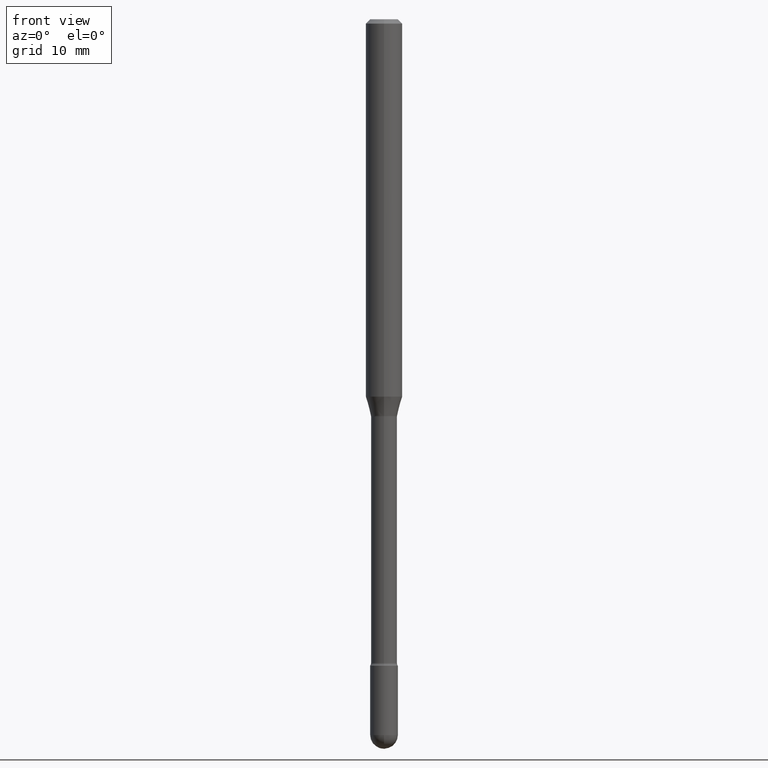
[diagram: clean part render]
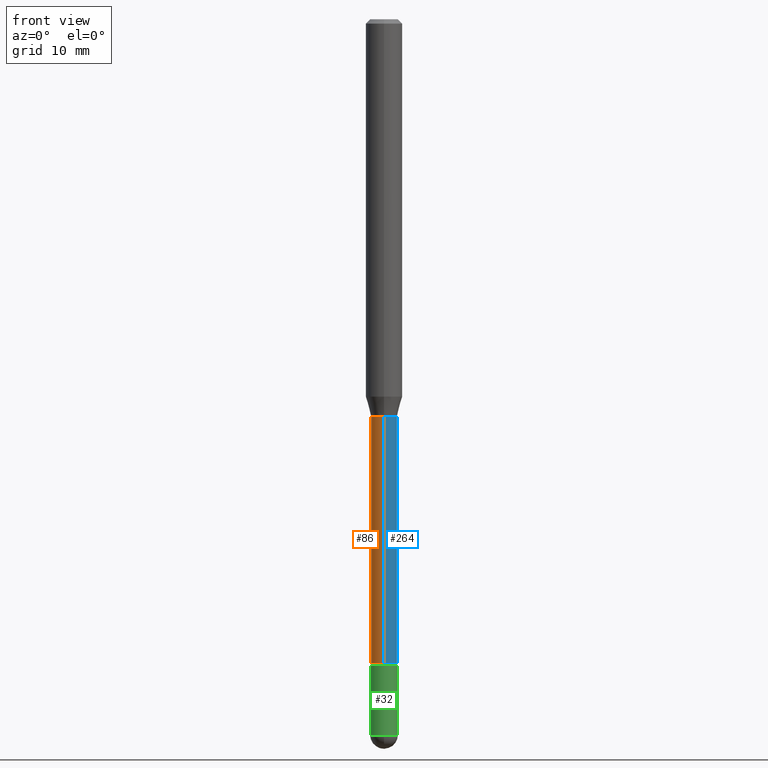
[diagram: same view with three faces highlighted in distinct colors, each labeled with its STEP entity id]
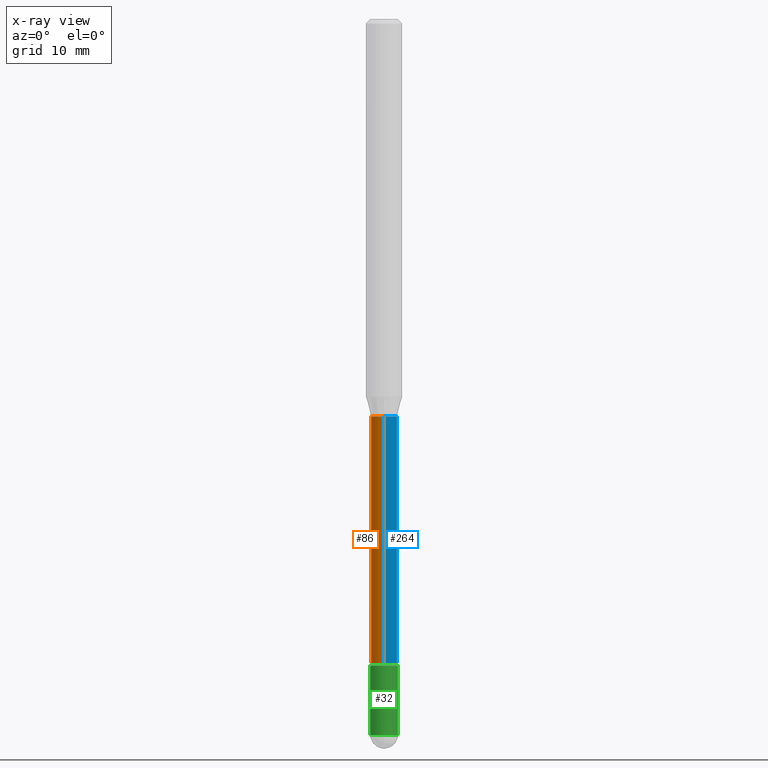
[diagram: x-ray of the same camera — body ghosted, the three highlighted faces saturated]
A machine part, front view with three faces highlighted in distinct colors.
The next image is the same camera in x-ray (body ghosted, the three faces saturated) — at least one of them is partly hidden behind the body in this view.
Their STEP definitions:

[orange] entity #86 — the highlighted cylindrical surface (edge-blend (fillet) strip) has radius 1.1341 mm, axis along (-0, 0, 1).
#2 = ORIENTED_EDGE ( 'NONE', *, *, #251, .F. ) ;
#10 = ORIENTED_EDGE ( 'NONE', *, *, #387, .T. ) ;
#20 = CARTESIAN_POINT ( 'NONE',  ( 3.172573315168849951E-16, 0.04465000000000004382, 3.221790159379056922E-16 ) ) ;
#31 = DIRECTION ( 'NONE',  ( -2.445472854051523017E-29, 3.491475542068089682E-15, 1.000000000000000000 ) ) ;
#36 = CIRCLE ( 'NONE', #113, 0.04465000000000007851 ) ;
#54 = FACE_OUTER_BOUND ( 'NONE', #440, .T. ) ;
#63 = CIRCLE ( 'NONE', #189, 0.04465000000000000219 ) ;
#86 = ADVANCED_FACE ( 'NONE', ( #54 ), #102, .T. ) ;
#87 = VERTEX_POINT ( 'NONE', #287 ) ;
#102 = CYLINDRICAL_SURFACE ( 'NONE', #390, 0.04465000000000004382 ) ;
#113 = AXIS2_PLACEMENT_3D ( 'NONE', #176, #444, #404 ) ;
#147 = CARTESIAN_POINT ( 'NONE',  ( 3.273825655015205278E-16, 0.04464999999999237634, -2.206203551853163081 ) ) ;
#155 = CARTESIAN_POINT ( 'NONE',  ( -1.169113584055446105E-44, 1.669184350826100908E-30, 4.780733988912460139E-16 ) ) ;
#161 = VERTEX_POINT ( 'NONE', #147 ) ;
#176 = CARTESIAN_POINT ( 'NONE',  ( 5.395210896568961877E-29, -7.702905742119066904E-15, -2.206203551853163081 ) ) ;
#189 = AXIS2_PLACEMENT_3D ( 'NONE', #389, #31, #548 ) ;
#215 = ORIENTED_EDGE ( 'NONE', *, *, #549, .T. ) ;
#251 = EDGE_CURVE ( 'NONE', #447, #466, #63, .T. ) ;
#266 = ORIENTED_EDGE ( 'NONE', *, *, #284, .F. ) ;
#272 = CARTESIAN_POINT ( 'NONE',  ( -3.117892835586584493E-16, -0.04465000000000475533, -1.361974787463811065 ) ) ;
#278 = VECTOR ( 'NONE', #430, 39.37007874015748143 ) ;
#284 = EDGE_CURVE ( 'NONE', #161, #447, #465, .T. ) ;
#287 = CARTESIAN_POINT ( 'NONE',  ( -3.117892835586383826E-16, -0.04465000000000778069, -2.206203551853162637 ) ) ;
#303 = VECTOR ( 'NONE', #540, 39.37007874015748143 ) ;
#387 = EDGE_CURVE ( 'NONE', #161, #87, #36, .T. ) ;
#389 = CARTESIAN_POINT ( 'NONE',  ( 3.330672370645342847E-29, -4.755301659343282249E-15, -1.361974787463811287 ) ) ;
#390 = AXIS2_PLACEMENT_3D ( 'NONE', #155, #493, #495 ) ;
#404 = DIRECTION ( 'NONE',  ( -6.982962677686265922E-15, -1.000000000000000000, 6.118360568117040476E-15 ) ) ;
#430 = DIRECTION ( 'NONE',  ( -2.445472854051522737E-29, 3.491475542068090077E-15, 1.000000000000000000 ) ) ;
#440 = EDGE_LOOP ( 'NONE', ( #266, #10, #215, #2 ) ) ;
#444 = DIRECTION ( 'NONE',  ( -2.445472854051523017E-29, 3.491475542068089682E-15, 1.000000000000000000 ) ) ;
#447 = VERTEX_POINT ( 'NONE', #484 ) ;
#458 = LINE ( 'NONE', #536, #303 ) ;
#465 = LINE ( 'NONE', #20, #278 ) ;
#466 = VERTEX_POINT ( 'NONE', #272 ) ;
#484 = CARTESIAN_POINT ( 'NONE',  ( 3.172573315169389334E-16, 0.04464999999999524904, -1.361974787463811509 ) ) ;
#493 = DIRECTION ( 'NONE',  ( -2.445472854051523017E-29, 3.491475542068089682E-15, 1.000000000000000000 ) ) ;
#495 = DIRECTION ( 'NONE',  ( -6.982962677686265922E-15, -1.000000000000000000, 3.491475542068089288E-15 ) ) ;
#536 = CARTESIAN_POINT ( 'NONE',  ( -3.117892835586920745E-16, -0.04465000000000004382, 6.339677818445863849E-16 ) ) ;
#540 = DIRECTION ( 'NONE',  ( -2.445472854051522737E-29, 3.491475542068090077E-15, 1.000000000000000000 ) ) ;
#548 = DIRECTION ( 'NONE',  ( -6.982962677686265922E-15, -1.000000000000000000, 6.118360568117050731E-15 ) ) ;
#549 = EDGE_CURVE ( 'NONE', #87, #466, #458, .T. ) ;

[blue] entity #264 — the highlighted cylindrical surface (edge-blend (fillet) strip) has radius 1.1341 mm, axis along (-0, 0, 1).
#20 = CARTESIAN_POINT ( 'NONE',  ( 3.172573315168849951E-16, 0.04465000000000004382, 3.221790159379056922E-16 ) ) ;
#55 = AXIS2_PLACEMENT_3D ( 'NONE', #107, #152, #457 ) ;
#73 = ORIENTED_EDGE ( 'NONE', *, *, #174, .T. ) ;
#87 = VERTEX_POINT ( 'NONE', #287 ) ;
#107 = CARTESIAN_POINT ( 'NONE',  ( 5.395210896568961877E-29, -7.702905742119066904E-15, -2.206203551853163081 ) ) ;
#112 = CARTESIAN_POINT ( 'NONE',  ( 3.330672370645342847E-29, -4.755301659343282249E-15, -1.361974787463811287 ) ) ;
#117 = EDGE_CURVE ( 'NONE', #466, #447, #254, .T. ) ;
#147 = CARTESIAN_POINT ( 'NONE',  ( 3.273825655015205278E-16, 0.04464999999999237634, -2.206203551853163081 ) ) ;
#152 = DIRECTION ( 'NONE',  ( -2.445472854051523017E-29, 3.491475542068089682E-15, 1.000000000000000000 ) ) ;
#161 = VERTEX_POINT ( 'NONE', #147 ) ;
#174 = EDGE_CURVE ( 'NONE', #87, #161, #382, .T. ) ;
#200 = DIRECTION ( 'NONE',  ( -2.445472854051523017E-29, 3.491475542068089682E-15, 1.000000000000000000 ) ) ;
#214 = AXIS2_PLACEMENT_3D ( 'NONE', #112, #200, #535 ) ;
#235 = AXIS2_PLACEMENT_3D ( 'NONE', #469, #300, #543 ) ;
#254 = CIRCLE ( 'NONE', #214, 0.04465000000000000219 ) ;
#264 = ADVANCED_FACE ( 'NONE', ( #474 ), #508, .T. ) ;
#272 = CARTESIAN_POINT ( 'NONE',  ( -3.117892835586584493E-16, -0.04465000000000475533, -1.361974787463811065 ) ) ;
#278 = VECTOR ( 'NONE', #430, 39.37007874015748143 ) ;
#284 = EDGE_CURVE ( 'NONE', #161, #447, #465, .T. ) ;
#287 = CARTESIAN_POINT ( 'NONE',  ( -3.117892835586383826E-16, -0.04465000000000778069, -2.206203551853162637 ) ) ;
#300 = DIRECTION ( 'NONE',  ( -2.445472854051523017E-29, 3.491475542068089682E-15, 1.000000000000000000 ) ) ;
#303 = VECTOR ( 'NONE', #540, 39.37007874015748143 ) ;
#309 = ORIENTED_EDGE ( 'NONE', *, *, #117, .F. ) ;
#382 = CIRCLE ( 'NONE', #55, 0.04465000000000007851 ) ;
#430 = DIRECTION ( 'NONE',  ( -2.445472854051522737E-29, 3.491475542068090077E-15, 1.000000000000000000 ) ) ;
#435 = ORIENTED_EDGE ( 'NONE', *, *, #549, .F. ) ;
#447 = VERTEX_POINT ( 'NONE', #484 ) ;
#457 = DIRECTION ( 'NONE',  ( -6.982962677686265922E-15, -1.000000000000000000, 6.118360568117040476E-15 ) ) ;
#458 = LINE ( 'NONE', #536, #303 ) ;
#465 = LINE ( 'NONE', #20, #278 ) ;
#466 = VERTEX_POINT ( 'NONE', #272 ) ;
#469 = CARTESIAN_POINT ( 'NONE',  ( -1.169113584055446105E-44, 1.669184350826100908E-30, 4.780733988912460139E-16 ) ) ;
#474 = FACE_OUTER_BOUND ( 'NONE', #532, .T. ) ;
#484 = CARTESIAN_POINT ( 'NONE',  ( 3.172573315169389334E-16, 0.04464999999999524904, -1.361974787463811509 ) ) ;
#485 = ORIENTED_EDGE ( 'NONE', *, *, #284, .T. ) ;
#508 = CYLINDRICAL_SURFACE ( 'NONE', #235, 0.04465000000000004382 ) ;
#532 = EDGE_LOOP ( 'NONE', ( #73, #485, #309, #435 ) ) ;
#535 = DIRECTION ( 'NONE',  ( -6.982962677686265922E-15, -1.000000000000000000, 6.118360568117050731E-15 ) ) ;
#536 = CARTESIAN_POINT ( 'NONE',  ( -3.117892835586920745E-16, -0.04465000000000004382, 6.339677818445863849E-16 ) ) ;
#540 = DIRECTION ( 'NONE',  ( -2.445472854051522737E-29, 3.491475542068090077E-15, 1.000000000000000000 ) ) ;
#543 = DIRECTION ( 'NONE',  ( -6.982962677686265922E-15, -1.000000000000000000, 3.491475542068089288E-15 ) ) ;
#549 = EDGE_CURVE ( 'NONE', #87, #466, #458, .T. ) ;

[green] entity #32 — the highlighted cylindrical surface (edge-blend (fillet) strip) has radius 1.2065 mm, axis along (-0, 0, 1).
#11 = CARTESIAN_POINT ( 'NONE',  ( -0.04749999999999999362, -7.810736775039144241E-15, -2.215000000000000302 ) ) ;
#23 = AXIS2_PLACEMENT_3D ( 'NONE', #528, #139, #320 ) ;
#26 = AXIS2_PLACEMENT_3D ( 'NONE', #337, #335, #500 ) ;
#32 = ADVANCED_FACE ( 'NONE', ( #186 ), #366, .T. ) ;
#42 = DIRECTION ( 'NONE',  ( -2.445468806185136597E-29, 3.491481338843145583E-15, 1.000000000000000000 ) ) ;
#43 = ORIENTED_EDGE ( 'NONE', *, *, #399, .T. ) ;
#70 = VECTOR ( 'NONE', #138, 39.37007874015748143 ) ;
#77 = LINE ( 'NONE', #212, #246 ) ;
#81 = VERTEX_POINT ( 'NONE', #499 ) ;
#89 = LINE ( 'NONE', #352, #70 ) ;
#103 = ORIENTED_EDGE ( 'NONE', *, *, #531, .T. ) ;
#114 = VERTEX_POINT ( 'NONE', #11 ) ;
#123 = CARTESIAN_POINT ( 'NONE',  ( 0.04749999999999999362, -8.065321892727665188E-15, -2.215000000000000302 ) ) ;
#138 = DIRECTION ( 'NONE',  ( -2.445468806185136877E-29, 3.491481338843145188E-15, 1.000000000000000000 ) ) ;
#139 = DIRECTION ( 'NONE',  ( -2.445468806185136597E-29, 3.491481338843145583E-15, 1.000000000000000000 ) ) ;
#162 = CIRCLE ( 'NONE', #26, 0.04750000000000000749 ) ;
#180 = AXIS2_PLACEMENT_3D ( 'NONE', #240, #415, #377 ) ;
#185 = CARTESIAN_POINT ( 'NONE',  ( -0.04750000000000000749, -7.810736775039144241E-15, -2.452500000000000124 ) ) ;
#186 = FACE_OUTER_BOUND ( 'NONE', #486, .T. ) ;
#202 = DIRECTION ( 'NONE',  ( -2.445468806185136877E-29, 3.491481338843145188E-15, 1.000000000000000000 ) ) ;
#209 = VERTEX_POINT ( 'NONE', #416 ) ;
#212 = CARTESIAN_POINT ( 'NONE',  ( -0.04750000000000000749, 3.375077994860476415E-16, -2.336494167871080260E-30 ) ) ;
#222 = ORIENTED_EDGE ( 'NONE', *, *, #412, .T. ) ;
#231 = ORIENTED_EDGE ( 'NONE', *, *, #330, .F. ) ;
#237 = CIRCLE ( 'NONE', #180, 0.04749999999999999362 ) ;
#240 = CARTESIAN_POINT ( 'NONE',  ( 5.416713405700078055E-29, -7.733631165537568465E-15, -2.215000000000000302 ) ) ;
#246 = VECTOR ( 'NONE', #202, 39.37007874015748143 ) ;
#320 = DIRECTION ( 'NONE',  ( 1.000000000000000000, -6.982962677686266711E-15, 4.876176775795934672E-29 ) ) ;
#330 = EDGE_CURVE ( 'NONE', #482, #114, #77, .T. ) ;
#335 = DIRECTION ( 'NONE',  ( -2.445468806185136597E-29, 3.491481338843145583E-15, 1.000000000000000000 ) ) ;
#337 = CARTESIAN_POINT ( 'NONE',  ( 5.997512247169047773E-29, -8.562857983512815004E-15, -2.452500000000000124 ) ) ;
#352 = CARTESIAN_POINT ( 'NONE',  ( 0.04750000000000000749, -3.316907271900977082E-16, 2.316183968503069432E-30 ) ) ;
#357 = ORIENTED_EDGE ( 'NONE', *, *, #559, .F. ) ;
#358 = AXIS2_PLACEMENT_3D ( 'NONE', #438, #42, #490 ) ;
#359 = CIRCLE ( 'NONE', #358, 0.04750000000000000749 ) ;
#366 = CYLINDRICAL_SURFACE ( 'NONE', #23, 0.04750000000000000749 ) ;
#368 = VERTEX_POINT ( 'NONE', #123 ) ;
#377 = DIRECTION ( 'NONE',  ( 1.000000000000000000, -6.982962677686261977E-15, 0.000000000000000000 ) ) ;
#399 = EDGE_CURVE ( 'NONE', #482, #81, #359, .T. ) ;
#412 = EDGE_CURVE ( 'NONE', #209, #368, #89, .T. ) ;
#415 = DIRECTION ( 'NONE',  ( -2.445468806185136597E-29, 3.491481338843145583E-15, 1.000000000000000000 ) ) ;
#416 = CARTESIAN_POINT ( 'NONE',  ( 0.04750000000000000749, -8.479935301715289246E-15, -2.452500000000000124 ) ) ;
#438 = CARTESIAN_POINT ( 'NONE',  ( 5.997512247169047773E-29, -8.562857983512815004E-15, -2.452500000000000124 ) ) ;
#482 = VERTEX_POINT ( 'NONE', #185 ) ;
#486 = EDGE_LOOP ( 'NONE', ( #231, #43, #103, #222, #357 ) ) ;
#490 = DIRECTION ( 'NONE',  ( 1.000000000000000000, -6.982962677686280910E-15, 0.000000000000000000 ) ) ;
#499 = CARTESIAN_POINT ( 'NONE',  ( -3.375077994859874909E-16, -0.04750000000000855621, -2.452499999999999680 ) ) ;
#500 = DIRECTION ( 'NONE',  ( 1.000000000000000000, -6.982962677686280910E-15, 0.000000000000000000 ) ) ;
#528 = CARTESIAN_POINT ( 'NONE',  ( 0.000000000000000000, 0.000000000000000000, 0.000000000000000000 ) ) ;
#531 = EDGE_CURVE ( 'NONE', #81, #209, #162, .T. ) ;
#559 = EDGE_CURVE ( 'NONE', #114, #368, #237, .T. ) ;